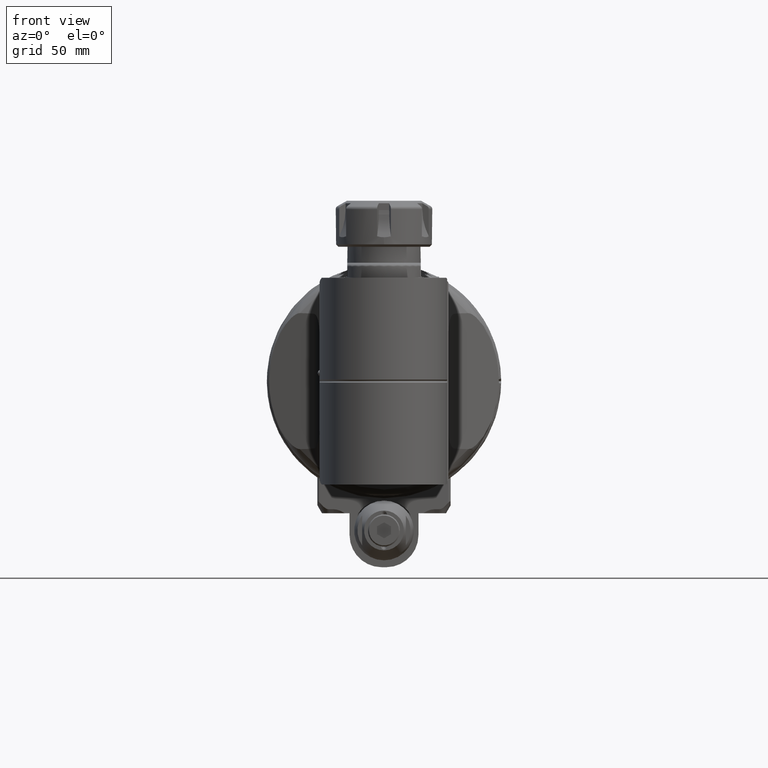
[diagram: clean part render]
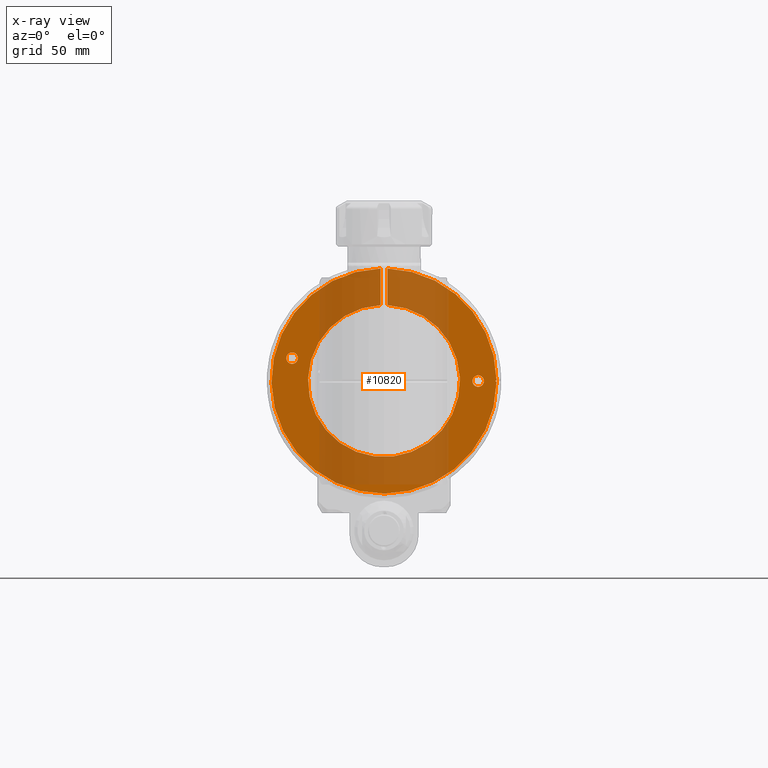
[diagram: x-ray — body ghosted, one internal face saturated and labeled with its STEP entity id]
A machine part, front view, then the same camera in x-ray: the body is ghosted and one INTERNAL B-rep face — a face not visible from any outside direction — is saturated and labeled: STEP entity #10820.
In plain terms, the highlighted planar face has unit normal (0, -1, 0).
Its self-contained STEP definition (entity closure, byte-faithful):
#319=FACE_BOUND('',#2460,.T.);
#320=FACE_BOUND('',#2461,.T.);
#1168=CIRCLE('',#11999,49.);
#1169=CIRCLE('',#12000,33.07735026919);
#1170=CIRCLE('',#12001,49.);
#1171=CIRCLE('',#12002,2.5);
#1172=CIRCLE('',#12003,2.5);
#1758=FACE_OUTER_BOUND('',#2459,.T.);
#2459=EDGE_LOOP('',(#8658,#8659,#8660,#8661,#8662,#8663,#8664));
#2460=EDGE_LOOP('',(#8665));
#2461=EDGE_LOOP('',(#8666));
#3171=LINE('',#20315,#3860);
#3172=LINE('',#20342,#3861);
#3174=LINE('',#20346,#3863);
#3175=LINE('',#20357,#3864);
#3860=VECTOR('',#14447,15.93371385813);
#3861=VECTOR('',#14460,0.658925954023283);
#3863=VECTOR('',#14464,0.658925954023283);
#3864=VECTOR('',#14473,15.93371385814);
#4802=VERTEX_POINT('',#20312);
#4803=VERTEX_POINT('',#20314);
#4808=VERTEX_POINT('',#20337);
#4809=VERTEX_POINT('',#20341);
#4810=VERTEX_POINT('',#20345);
#4812=VERTEX_POINT('',#20354);
#4813=VERTEX_POINT('',#20356);
#4814=VERTEX_POINT('',#20359);
#4815=VERTEX_POINT('',#20361);
#6165=EDGE_CURVE('',#4803,#4802,#3171,.T.);
#6173=EDGE_CURVE('',#4809,#4808,#3172,.T.);
#6175=EDGE_CURVE('',#4810,#4809,#3174,.T.);
#6178=EDGE_CURVE('',#4808,#4803,#1168,.T.);
#6179=EDGE_CURVE('',#4802,#4812,#1169,.T.);
#6180=EDGE_CURVE('',#4812,#4813,#3175,.T.);
#6181=EDGE_CURVE('',#4813,#4810,#1170,.T.);
#6182=EDGE_CURVE('',#4814,#4814,#1171,.T.);
#6183=EDGE_CURVE('',#4815,#4815,#1172,.T.);
#8658=ORIENTED_EDGE('',*,*,#6178,.T.);
#8659=ORIENTED_EDGE('',*,*,#6165,.T.);
#8660=ORIENTED_EDGE('',*,*,#6179,.T.);
#8661=ORIENTED_EDGE('',*,*,#6180,.T.);
#8662=ORIENTED_EDGE('',*,*,#6181,.T.);
#8663=ORIENTED_EDGE('',*,*,#6175,.T.);
#8664=ORIENTED_EDGE('',*,*,#6173,.T.);
#8665=ORIENTED_EDGE('',*,*,#6182,.T.);
#8666=ORIENTED_EDGE('',*,*,#6183,.T.);
#10123=PLANE('',#11998);
#10820=ADVANCED_FACE('',(#1758,#319,#320),#10123,.T.);
#11998=AXIS2_PLACEMENT_3D('',#20352,#14467,#14468);
#11999=AXIS2_PLACEMENT_3D('',#20353,#14469,#14470);
#12000=AXIS2_PLACEMENT_3D('',#20355,#14471,#14472);
#12001=AXIS2_PLACEMENT_3D('',#20358,#14474,#14475);
#12002=AXIS2_PLACEMENT_3D('',#20360,#14476,#14477);
#12003=AXIS2_PLACEMENT_3D('',#20362,#14478,#14479);
#14447=DIRECTION('',(-5.896537023224E-13,0.,-1.));
#14460=DIRECTION('',(0.75592894601842,0.,0.654653670708017));
#14464=DIRECTION('',(-0.75592894601842,0.,0.654653670708017));
#14467=DIRECTION('center_axis',(0.,-1.,0.));
#14468=DIRECTION('ref_axis',(0.,0.,1.));
#14469=DIRECTION('center_axis',(0.,-1.,0.));
#14470=DIRECTION('ref_axis',(0.99996124901896,0.,0.00880343458216564));
#14471=DIRECTION('center_axis',(0.,1.,0.));
#14472=DIRECTION('ref_axis',(0.0453482515314194,0.,0.998971238866787));
#14473=DIRECTION('',(0.,0.,1.));
#14474=DIRECTION('center_axis',(0.,-1.,0.));
#14475=DIRECTION('ref_axis',(-0.0306122448979601,0.,0.999531335407904));
#14476=DIRECTION('center_axis',(0.,1.,0.));
#14477=DIRECTION('ref_axis',(-1.,0.,0.));
#14478=DIRECTION('center_axis',(0.,1.,0.));
#14479=DIRECTION('ref_axis',(-1.,0.,0.));
#20312=CARTESIAN_POINT('',(1.499999999991,0.,33.04332157686));
#20314=CARTESIAN_POINT('',(1.5,3.552713678801E-14,48.97703543499));
#20315=CARTESIAN_POINT('',(1.5,0.,48.97703543499));
#20337=CARTESIAN_POINT('',(48.99810120193,-1.42108547152E-14,0.4313682945261));
#20341=CARTESIAN_POINT('',(48.5,-1.42108547152E-14,-1.845657092209E-14));
#20342=CARTESIAN_POINT('',(48.5,-1.42108547152E-14,-1.845657092209E-14));
#20345=CARTESIAN_POINT('',(48.99810120193,0.,-0.4313682945262));
#20346=CARTESIAN_POINT('',(48.99810120193,0.,-0.4313682945262));
#20352=CARTESIAN_POINT('Origin',(0.,0.,49.13074005203));
#20353=CARTESIAN_POINT('Origin',(0.,3.552713678801E-14,0.));
#20354=CARTESIAN_POINT('',(-1.5,1.657933050107E-14,33.04332157684));
#20355=CARTESIAN_POINT('Origin',(0.,-9.237055564881E-14,0.));
#20356=CARTESIAN_POINT('',(-1.5,0.,48.97703543499));
#20357=CARTESIAN_POINT('',(-1.5,1.657933050107E-14,33.04332157684));
#20358=CARTESIAN_POINT('Origin',(0.,-5.684341886081E-14,0.));
#20359=CARTESIAN_POINT('',(-37.5,0.,10.));
#20360=CARTESIAN_POINT('Origin',(-40.,0.,10.));
#20361=CARTESIAN_POINT('',(43.5,0.,0.));
#20362=CARTESIAN_POINT('Origin',(41.,0.,0.));